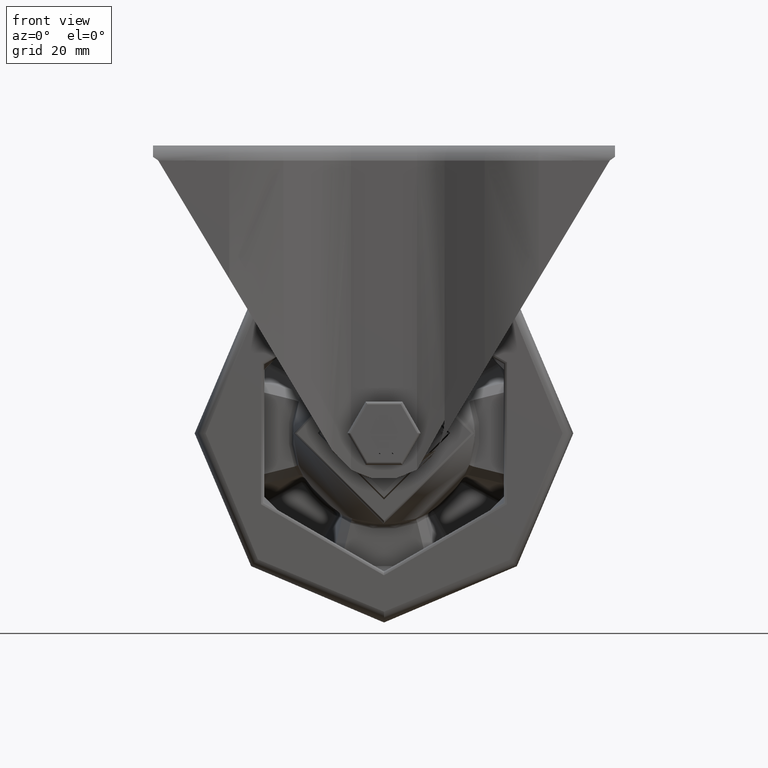
[diagram: clean part render]
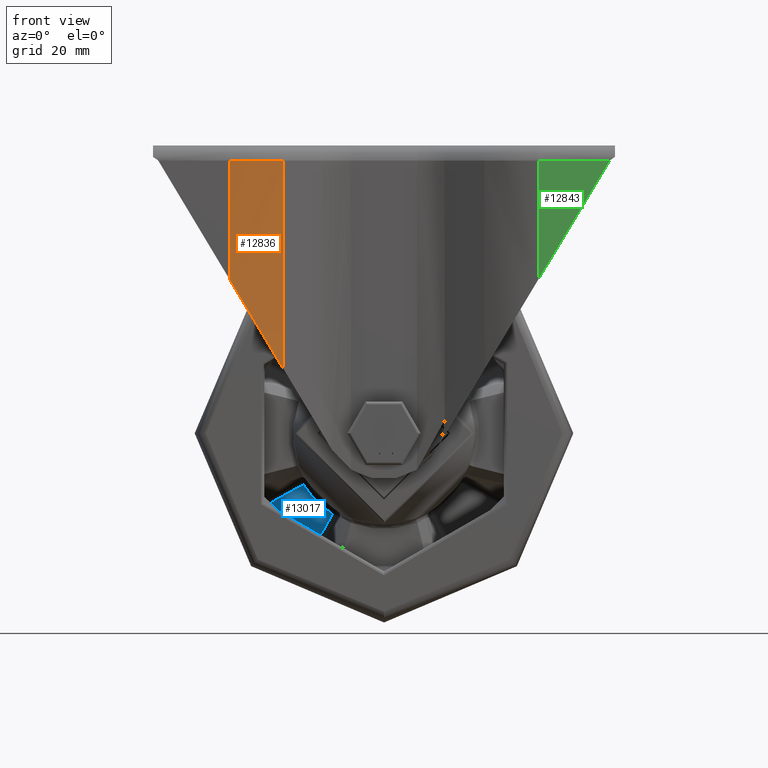
[diagram: same view with three faces highlighted in distinct colors, each labeled with its STEP entity id]
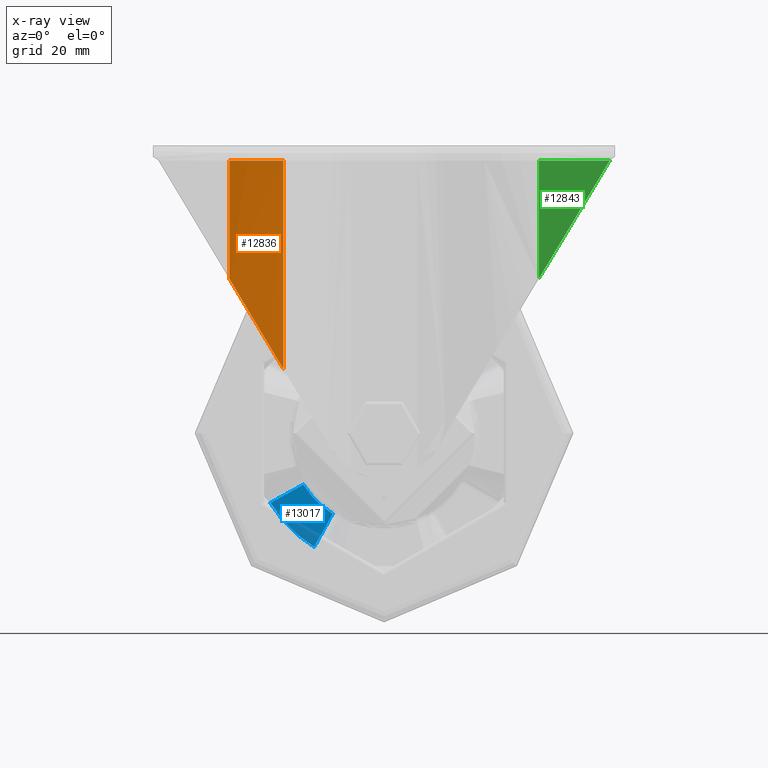
[diagram: x-ray of the same camera — body ghosted, the three highlighted faces saturated]
A machine part, front view with three faces highlighted in distinct colors.
The next image is the same camera in x-ray (body ghosted, the three faces saturated) — at least one of them is partly hidden behind the body in this view.
Their STEP definitions:

[orange] entity #12836 — the highlighted cylindrical surface (partial cylindrical patch) has radius 30.5 mm, axis along (0, 0, -1).
#1347=ELLIPSE('',#13909,59.2643544886227,30.5);
#1377=CYLINDRICAL_SURFACE('',#13911,30.5);
#1696=CIRCLE('',#13912,30.5);
#2283=FACE_OUTER_BOUND('',#3118,.T.);
#3118=EDGE_LOOP('',(#8885,#8886,#8887,#8888));
#4110=LINE('',#18525,#4808);
#4111=LINE('',#18529,#4809);
#4808=VECTOR('',#15342,10.);
#4809=VECTOR('',#15347,10.);
#5523=VERTEX_POINT('',#18517);
#5524=VERTEX_POINT('',#18519);
#5525=VERTEX_POINT('',#18523);
#5526=VERTEX_POINT('',#18527);
#6812=EDGE_CURVE('',#5524,#5523,#1347,.T.);
#6815=EDGE_CURVE('',#5525,#5524,#4110,.T.);
#6816=EDGE_CURVE('',#5525,#5526,#1696,.T.);
#6817=EDGE_CURVE('',#5523,#5526,#4111,.T.);
#8885=ORIENTED_EDGE('',*,*,#6816,.F.);
#8886=ORIENTED_EDGE('',*,*,#6815,.T.);
#8887=ORIENTED_EDGE('',*,*,#6812,.T.);
#8888=ORIENTED_EDGE('',*,*,#6817,.T.);
#12836=ADVANCED_FACE('',(#2283),#1377,.T.);
#13909=AXIS2_PLACEMENT_3D('',#18520,#15336,#15337);
#13911=AXIS2_PLACEMENT_3D('',#18526,#15343,#15344);
#13912=AXIS2_PLACEMENT_3D('',#18528,#15345,#15346);
#15336=DIRECTION('center_axis',(0.857404411747813,0.,0.514643249946395));
#15337=DIRECTION('ref_axis',(0.514643249946395,1.87334028051937E-17,-0.857404411747813));
#15342=DIRECTION('',(0.,0.,-1.));
#15343=DIRECTION('center_axis',(0.,0.,-1.));
#15344=DIRECTION('ref_axis',(0.241921895599668,-0.970295726275996,0.));
#15345=DIRECTION('center_axis',(0.,0.,1.));
#15346=DIRECTION('ref_axis',(0.241921895599667,-0.970295726275997,0.));
#15347=DIRECTION('',(0.,0.,1.));
#18517=CARTESIAN_POINT('',(454.485836055673,-85.6250108521296,-59.0439552660896));
#18519=CARTESIAN_POINT('',(440.166953390703,-89.1951092699324,-35.18845309148));
#18520=CARTESIAN_POINT('Origin',(440.166953390703,-58.6951092699324,-35.18845309148));
#18523=CARTESIAN_POINT('',(440.166953390703,-89.1951092699324,-4.));
#18525=CARTESIAN_POINT('',(440.166953390703,-89.1951092699324,-126.));
#18526=CARTESIAN_POINT('Origin',(440.166953390703,-58.6951092699324,-126.));
#18527=CARTESIAN_POINT('',(454.485836055673,-85.6250108521296,-4.));
#18528=CARTESIAN_POINT('Origin',(440.166953390703,-58.6951092699324,-4.));
#18529=CARTESIAN_POINT('',(454.485836055673,-85.6250108521296,-126.));

[blue] entity #13017 — the highlighted planar face has unit normal (0, -1, 0).
#820=B_SPLINE_CURVE_WITH_KNOTS('',3,(#34446,#34447,#34448,#34449,#34450,
#34451,#34452,#34453,#34454,#34455,#34456,#34457,#34458,#34459,#34460,#34461,
#34462,#34463,#34464,#34465,#34466,#34467,#34468,#34469,#34470),
 .UNSPECIFIED.,.F.,.F.,(4,3,3,3,3,3,3,3,4),(-0.0100139008409766,-0.00831924069865747,
-0.00667593389398439,-0.00564886714106372,-0.0050069504204883,-0.00436503369991287,
-0.0033379669469922,-0.00169466014231912,0.),.UNSPECIFIED.);
#823=B_SPLINE_CURVE_WITH_KNOTS('',3,(#34735,#34736,#34737,#34738,#34739,
#34740,#34741,#34742,#34743,#34744,#34745,#34746,#34747,#34748,#34749,#34750,
#34751),.UNSPECIFIED.,.F.,.F.,(4,2,2,2,1,2,2,2,4),(-0.0100139008398249,
-0.00831924069770071,-0.00667593389321662,-0.00564886714041406,-0.00500695041991246,
-0.00436503369941087,-0.00333796694660831,-0.00169466014212422,0.),
 .UNSPECIFIED.);
#1941=CIRCLE('',#14269,25.25);
#1942=CIRCLE('',#14271,35.25);
#2464=FACE_OUTER_BOUND('',#3310,.T.);
#3310=EDGE_LOOP('',(#9695,#9696,#9697,#9698));
#5755=VERTEX_POINT('',#34443);
#5756=VERTEX_POINT('',#34445);
#5758=VERTEX_POINT('',#34712);
#5761=VERTEX_POINT('',#34733);
#7205=EDGE_CURVE('',#5755,#5756,#820,.T.);
#7215=EDGE_CURVE('',#5761,#5758,#823,.T.);
#7243=EDGE_CURVE('',#5756,#5761,#1941,.T.);
#7244=EDGE_CURVE('',#5758,#5755,#1942,.T.);
#9695=ORIENTED_EDGE('',*,*,#7205,.F.);
#9696=ORIENTED_EDGE('',*,*,#7244,.F.);
#9697=ORIENTED_EDGE('',*,*,#7215,.F.);
#9698=ORIENTED_EDGE('',*,*,#7243,.F.);
#12569=PLANE('',#14270);
#13017=ADVANCED_FACE('',(#2464),#12569,.T.);
#14269=AXIS2_PLACEMENT_3D('',#36381,#16091,#16092);
#14270=AXIS2_PLACEMENT_3D('',#36382,#16093,#16094);
#14271=AXIS2_PLACEMENT_3D('',#36383,#16095,#16096);
#16091=DIRECTION('center_axis',(0.,-1.,0.));
#16092=DIRECTION('ref_axis',(-0.707106781186547,0.,-0.707106781186548));
#16093=DIRECTION('center_axis',(0.,-1.,0.));
#16094=DIRECTION('ref_axis',(0.70710678118655,0.,-0.707106781186545));
#16095=DIRECTION('center_axis',(0.,1.,0.));
#16096=DIRECTION('ref_axis',(-0.707106781186546,0.,-0.707106781186549));
#34443=CARTESIAN_POINT('',(-30.0552539861327,10.,-18.4185832196516));
#34445=CARTESIAN_POINT('',(-21.2923281915093,10.,-13.5720028127421));
#34446=CARTESIAN_POINT('Ctrl Pts',(-30.055253986014,10.,-18.4185832195788));
#34447=CARTESIAN_POINT('Ctrl Pts',(-29.5616567546872,10.,-18.1438856167491));
#34448=CARTESIAN_POINT('Ctrl Pts',(-29.0679392924029,10.,-17.8694033245187));
#34449=CARTESIAN_POINT('Ctrl Pts',(-28.5741005055158,10.,-17.5951390223509));
#34450=CARTESIAN_POINT('Ctrl Pts',(-28.0952265303525,10.,-17.3291857596428));
#34451=CARTESIAN_POINT('Ctrl Pts',(-27.6162384723644,10.,-17.0634374754786));
#34452=CARTESIAN_POINT('Ctrl Pts',(-27.1371354464909,10.,-16.7978964146163));
#34453=CARTESIAN_POINT('Ctrl Pts',(-26.8376960553199,10.,-16.6319332515773));
#34454=CARTESIAN_POINT('Ctrl Pts',(-26.5382117570338,10.,-16.4660510312143));
#34455=CARTESIAN_POINT('Ctrl Pts',(-26.2386823584453,10.,-16.3002502606753));
#34456=CARTESIAN_POINT('Ctrl Pts',(-26.0514764843275,10.,-16.1966247790884));
#34457=CARTESIAN_POINT('Ctrl Pts',(-25.8642529932572,10.,-16.0930311132069));
#34458=CARTESIAN_POINT('Ctrl Pts',(-25.6770118416664,10.,-15.9894693803771));
#34459=CARTESIAN_POINT('Ctrl Pts',(-25.4897706900756,10.,-15.8859076475472));
#34460=CARTESIAN_POINT('Ctrl Pts',(-25.3025118779616,10.,-15.7823778477755));
#34461=CARTESIAN_POINT('Ctrl Pts',(-25.1152353645744,10.,-15.6788800933156));
#34462=CARTESIAN_POINT('Ctrl Pts',(-24.815592943155,10.,-15.5132836861798));
#34463=CARTESIAN_POINT('Ctrl Pts',(-24.5159052055078,10.,-15.3477693168088));
#34464=CARTESIAN_POINT('Ctrl Pts',(-24.2161719999837,10.,-15.182337417282));
#34465=CARTESIAN_POINT('Ctrl Pts',(-23.7365988711451,10.,-14.9176463780391));
#34466=CARTESIAN_POINT('Ctrl Pts',(-23.2569093380137,10.,-14.6531664736168));
#34467=CARTESIAN_POINT('Ctrl Pts',(-22.7771028816671,10.,-14.3888992869056));
#34468=CARTESIAN_POINT('Ctrl Pts',(-22.2823024735596,10.,-14.1163737506097));
#34469=CARTESIAN_POINT('Ctrl Pts',(-21.7873777193885,10.,-13.8440744365775));
#34470=CARTESIAN_POINT('Ctrl Pts',(-21.2923281937218,10.,-13.5720028156556));
#34712=CARTESIAN_POINT('',(-18.418583219392,10.,-30.055253985617));
#34733=CARTESIAN_POINT('',(-13.5720028140522,9.99999999995674,-21.2923281910297));
#34735=CARTESIAN_POINT('Ctrl Pts',(-13.5720028156555,10.,-21.2923281937219));
#34736=CARTESIAN_POINT('Ctrl Pts',(-13.8440744365461,10.,-21.7873777193316));
#34737=CARTESIAN_POINT('Ctrl Pts',(-14.1163737505469,10.,-22.2823024734458));
#34738=CARTESIAN_POINT('Ctrl Pts',(-14.6531664734922,10.,-23.2569093377879));
#34739=CARTESIAN_POINT('Ctrl Pts',(-14.917646377884,10.,-23.7365988708641));
#34740=CARTESIAN_POINT('Ctrl Pts',(-15.3477693166041,10.,-24.5159052051373));
#34741=CARTESIAN_POINT('Ctrl Pts',(-15.513283685956,9.99999999999999,-24.8155929427501));
#34742=CARTESIAN_POINT('Ctrl Pts',(-15.7823778475206,9.99999999999999,-25.3025118775008));
#34743=CARTESIAN_POINT('Ctrl Pts',(-15.9894374470402,9.99999999999999,-25.6770295016858));
#34744=CARTESIAN_POINT('Ctrl Pts',(-16.1966247787857,10.,-26.0514764837806));
#34745=CARTESIAN_POINT('Ctrl Pts',(-16.4660510308804,10.,-26.5382117564311));
#34746=CARTESIAN_POINT('Ctrl Pts',(-16.6319332512242,10.,-26.8376960546829));
#34747=CARTESIAN_POINT('Ctrl Pts',(-17.0634374750756,10.,-27.616238471638));
#34748=CARTESIAN_POINT('Ctrl Pts',(-17.329185759209,10.,-28.0952265295712));
#34749=CARTESIAN_POINT('Ctrl Pts',(-17.8694033240223,10.,-29.0679392915099));
#34750=CARTESIAN_POINT('Ctrl Pts',(-18.1438856162208,10.,-29.5616567537375));
#34751=CARTESIAN_POINT('Ctrl Pts',(-18.4185832190187,10.,-30.0552539850077));
#36381=CARTESIAN_POINT('Origin',(0.,10.,0.));
#36382=CARTESIAN_POINT('Origin',(-2.41839976811054E-14,10.,3.18202855566698E-14));
#36383=CARTESIAN_POINT('Origin',(0.,10.,0.));

[green] entity #12843 — the highlighted planar face has unit normal (0, -1, 0).
#2290=FACE_OUTER_BOUND('',#3126,.T.);
#3126=EDGE_LOOP('',(#8916,#8917,#8918));
#4121=LINE('',#18557,#4819);
#4122=LINE('',#18560,#4820);
#4123=LINE('',#18561,#4821);
#4819=VECTOR('',#15377,10.);
#4820=VECTOR('',#15380,10.);
#4821=VECTOR('',#15381,10.);
#5533=VERTEX_POINT('',#18553);
#5534=VERTEX_POINT('',#18555);
#5535=VERTEX_POINT('',#18559);
#6831=EDGE_CURVE('',#5534,#5533,#4121,.T.);
#6832=EDGE_CURVE('',#5533,#5535,#4122,.T.);
#6833=EDGE_CURVE('',#5534,#5535,#4123,.T.);
#8916=ORIENTED_EDGE('',*,*,#6832,.F.);
#8917=ORIENTED_EDGE('',*,*,#6831,.F.);
#8918=ORIENTED_EDGE('',*,*,#6833,.T.);
#12550=PLANE('',#13923);
#12843=ADVANCED_FACE('',(#2290),#12550,.T.);
#13923=AXIS2_PLACEMENT_3D('',#18558,#15378,#15379);
#15377=DIRECTION('',(0.,0.,1.));
#15378=DIRECTION('center_axis',(0.,-1.,0.));
#15379=DIRECTION('ref_axis',(0.,0.,-1.));
#15380=DIRECTION('',(1.,0.,0.));
#15381=DIRECTION('',(0.514643249946396,0.,0.857404411747812));
#18553=CARTESIAN_POINT('',(521.920073170202,-89.1951092699324,-4.));
#18555=CARTESIAN_POINT('',(521.920073170202,-89.1951092699324,-35.1884530914782));
#18557=CARTESIAN_POINT('',(521.920073170202,-89.1951092699324,-126.));
#18558=CARTESIAN_POINT('Origin',(440.166953390703,-89.1951092699324,-126.));
#18559=CARTESIAN_POINT('',(540.640442041502,-89.1951092699324,-4.));
#18560=CARTESIAN_POINT('',(440.166953390703,-89.1951092699324,-4.));
#18561=CARTESIAN_POINT('',(500.691902637127,-89.1951092699324,-70.5549464250427));